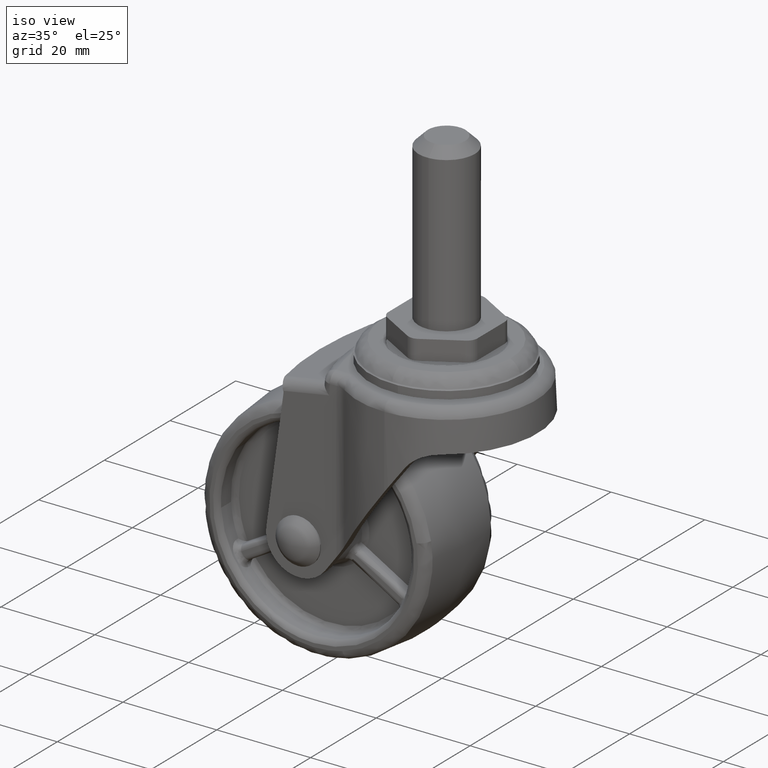
[diagram: clean part render]
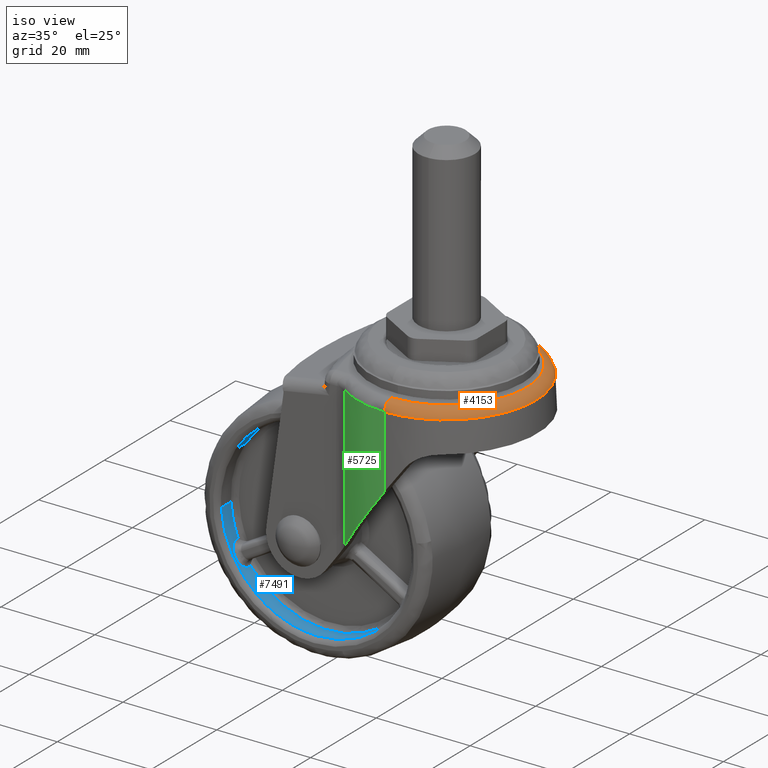
[diagram: same view with three faces highlighted in distinct colors, each labeled with its STEP entity id]
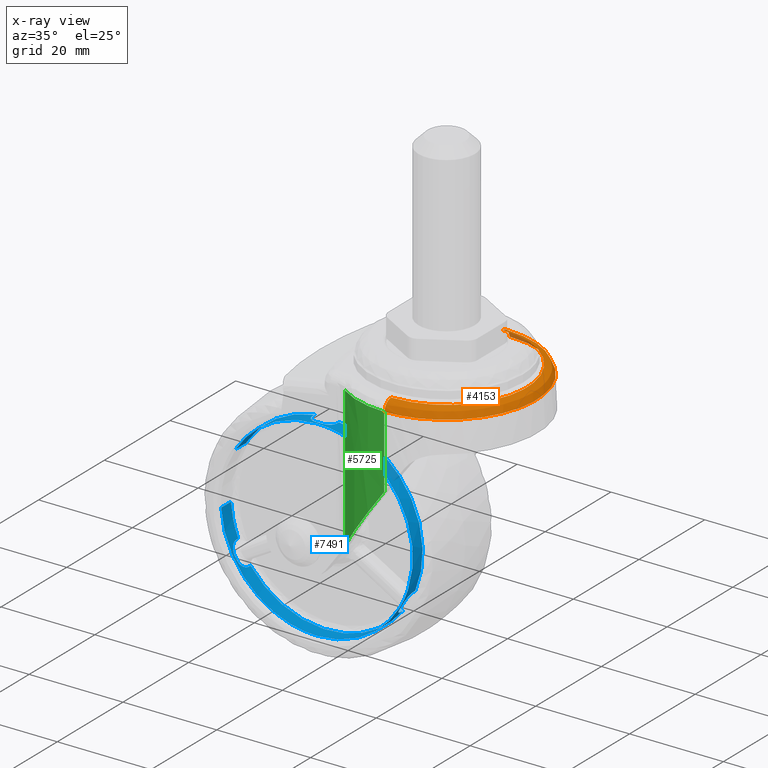
[diagram: x-ray of the same camera — body ghosted, the three highlighted faces saturated]
A machine part, iso view with three faces highlighted in distinct colors.
The next image is the same camera in x-ray (body ghosted, the three faces saturated) — at least one of them is partly hidden behind the body in this view.
Their STEP definitions:

[orange] entity #4153 — the highlighted face is a freeform B-spline surface patch.
#3962=CARTESIAN_POINT('',(21.076544331563849,17.0,33.959998999999897));
#3963=VERTEX_POINT('',#3962);
#3964=CARTESIAN_POINT('',(21.076544331563849,19.0,31.959998999999900));
#3965=VERTEX_POINT('',#3964);
#3966=CARTESIAN_POINT('',(21.076544331563849,17.0,33.959998999999897));
#3967=CARTESIAN_POINT('',(21.076544331563852,19.000000000000011,33.959998999999911));
#3968=CARTESIAN_POINT('',(21.076544331563849,19.0,31.959998999999900));
#3976=(BOUNDED_CURVE()B_SPLINE_CURVE(2,(#3966,#3967,#3968),.UNSPECIFIED.,.F.,.U.)CURVE()GEOMETRIC_REPRESENTATION_ITEM()QUASI_UNIFORM_CURVE()RATIONAL_B_SPLINE_CURVE((1.0,0.707106781186548,1.0))REPRESENTATION_ITEM(''));
#3977=EDGE_CURVE('',#3963,#3965,#3976,.T.);
#3993=CARTESIAN_POINT('',(21.076544331563841,-19.0,31.959998999999979));
#3994=CARTESIAN_POINT('',(22.321321544391651,-19.000000000000011,31.966507586487712));
#3995=CARTESIAN_POINT('',(23.566039739079219,-18.877524330151122,31.973015864304610));
#3996=CARTESIAN_POINT('',(26.007730376111809,-18.392316325171649,31.985782771051849));
#3997=CARTESIAN_POINT('',(27.204628326506018,-18.029595986933010,31.992041010432668));
#3998=CARTESIAN_POINT('',(29.504650614111650,-17.077826248495910,32.004067173623142));
#3999=CARTESIAN_POINT('',(30.607718082681309,-16.488800381048829,32.009834800065171));
#4000=CARTESIAN_POINT('',(32.677683454204697,-15.107044886447900,32.020658060999843));
#4001=CARTESIAN_POINT('',(33.644530176741164,-14.314349423548251,32.025713427861362));
#4002=CARTESIAN_POINT('',(35.404891023812141,-12.555708261540641,32.034917854668379));
#4003=CARTESIAN_POINT('',(36.198361622978652,-11.589806045281220,32.039066687038343));
#4004=CARTESIAN_POINT('',(37.581468265465872,-9.521862809463702,32.046298558776520));
#4005=CARTESIAN_POINT('',(38.171070111122077,-8.419872920329327,32.049381419334850));
#4006=CARTESIAN_POINT('',(39.123770536405459,-6.122097509544138,32.054362819247487));
#4007=CARTESIAN_POINT('',(39.486845560275647,-4.926368800969351,32.056261235402140));
#4008=CARTESIAN_POINT('',(39.972528025296029,-2.487063435643575,32.058800731045046));
#4009=CARTESIAN_POINT('',(40.095123457825942,-1.243547091331361,32.059441747737303));
#4010=CARTESIAN_POINT('',(40.095123457825942,1.243547091331429,32.059441747737303));
#4011=CARTESIAN_POINT('',(39.972528025296029,2.487063435643537,32.058800731045046));
#4012=CARTESIAN_POINT('',(39.486845560275647,4.926368800969313,32.056261235402140));
#4013=CARTESIAN_POINT('',(39.123770536405637,6.122097509543672,32.054362819247487));
#4014=CARTESIAN_POINT('',(38.171070111121942,8.419872920329688,32.049381419334850));
#4015=CARTESIAN_POINT('',(37.581468265464679,9.521862809465466,32.046298558776648));
#4016=CARTESIAN_POINT('',(36.198361622979853,11.589806045279420,32.039066687038208));
#4017=CARTESIAN_POINT('',(35.404891023810769,12.555708261542000,32.034917854668322));
#4018=CARTESIAN_POINT('',(33.644530176742677,14.314349423546730,32.025713427861433));
#4019=CARTESIAN_POINT('',(32.677683454208292,15.107044886445509,32.020658060999821));
#4020=CARTESIAN_POINT('',(30.607718082677760,16.488800381051199,32.009834800065178));
#4021=CARTESIAN_POINT('',(29.504650614107732,17.077826248497530,32.004067173623142));
#4022=CARTESIAN_POINT('',(27.204628326510061,18.029595986931351,31.992041010432679));
#4023=CARTESIAN_POINT('',(26.007730376112210,18.392316325171560,31.985782771051870));
#4024=CARTESIAN_POINT('',(23.566039739078889,18.877524330151189,31.973015864304589));
#4025=CARTESIAN_POINT('',(22.321321544392031,19.000000000000011,31.966507586487712));
#4026=CARTESIAN_POINT('',(21.076544331563770,19.0,31.959998999999979));
#4027=CARTESIAN_POINT('',(21.076544331563841,-18.999999999999925,33.959998999999911));
#4028=CARTESIAN_POINT('',(22.321326561709260,-18.993491387252934,33.959998999984442));
#4029=CARTESIAN_POINT('',(23.564747808145871,-18.864575325833243,33.959998999999897));
#4030=CARTESIAN_POINT('',(26.001534672508114,-18.367575831577728,33.959998999999897));
#4031=CARTESIAN_POINT('',(27.194823455868995,-17.999508636963661,33.959998999999890));
#4032=CARTESIAN_POINT('',(29.485908581077624,-17.038909927720471,33.959998999999897));
#4033=CARTESIAN_POINT('',(30.583651940276098,-16.446404693135626,33.959998999999904));
#4034=CARTESIAN_POINT('',(32.642085999809517,-15.060037110888562,33.959998999999904));
#4035=CARTESIAN_POINT('',(33.602729996908224,-14.266210021993924,33.959998999999911));
#4036=CARTESIAN_POINT('',(35.350744769400016,-12.507782408384259,33.959998999999911));
#4037=CARTESIAN_POINT('',(36.138076464941932,-11.543224784754957,33.959998999999911));
#4038=CARTESIAN_POINT('',(37.509877635008507,-9.480218361312200,33.959998999999897));
#4039=CARTESIAN_POINT('',(38.094316770002756,-8.381818609000995,33.959998999999904));
#4040=CARTESIAN_POINT('',(39.038420911785906,-6.092923421007789,33.959998999999904));
#4041=CARTESIAN_POINT('',(39.398065190254329,-4.902481540909773,33.959998999999904));
#4042=CARTESIAN_POINT('',(39.879114049548711,-2.474665106417900,33.959998999999904));
#4043=CARTESIAN_POINT('',(40.000508113015250,-1.237346862616169,33.959998999999904));
#4044=CARTESIAN_POINT('',(40.000508113015250,1.237346862616236,33.959998999999904));
#4045=CARTESIAN_POINT('',(39.879114049552577,2.474665106417863,33.959998999999904));
#4046=CARTESIAN_POINT('',(39.398065190250470,4.902481540909736,33.959998999999904));
#4047=CARTESIAN_POINT('',(39.038420911789785,6.092923421007734,33.959998999999897));
#4048=CARTESIAN_POINT('',(38.094316769998912,8.381818609000939,33.959998999999897));
#4049=CARTESIAN_POINT('',(37.509877635004656,9.480218361311218,33.959998999999911));
#4050=CARTESIAN_POINT('',(36.138076464945790,11.543224784755907,33.959998999999911));
#4051=CARTESIAN_POINT('',(35.350744769400102,12.507782408387081,33.959998999999897));
#4052=CARTESIAN_POINT('',(33.602729996908302,14.266210021990963,33.959998999999904));
#4053=CARTESIAN_POINT('',(32.642085999809531,15.060037110884695,33.959998999999897));
#4054=CARTESIAN_POINT('',(30.583651940276102,16.446404693139478,33.959998999999897));
#4055=CARTESIAN_POINT('',(29.485908581075751,17.038909927724319,33.959998999999911));
#4056=CARTESIAN_POINT('',(27.194823455870988,17.999508636959771,33.959998999999911));
#4057=CARTESIAN_POINT('',(26.001534672508150,18.367575831575774,33.959998999999890));
#4058=CARTESIAN_POINT('',(23.564747808145903,18.864575325835162,33.959998999999897));
#4059=CARTESIAN_POINT('',(22.321326561709363,18.993491387252920,33.959998999984435));
#4060=CARTESIAN_POINT('',(21.076544331563781,18.999999999999925,33.959998999999911));
#4061=CARTESIAN_POINT('',(21.076544331563849,-17.0,33.959998999999897));
#4062=CARTESIAN_POINT('',(22.190582273708930,-17.000000000001929,33.959998999999897));
#4063=CARTESIAN_POINT('',(23.304567396401211,-16.890416505923909,33.959998999999897));
#4064=CARTESIAN_POINT('',(25.489806638092968,-16.456283027785940,33.959998999999897));
#4065=CARTESIAN_POINT('',(26.560994089044829,-16.131743777780940,33.959998999999897));
#4066=CARTESIAN_POINT('',(28.619444444469949,-15.280160327602820,33.959998999999897));
#4067=CARTESIAN_POINT('',(29.606656453225849,-14.753137183044011,33.959998999999897));
#4068=CARTESIAN_POINT('',(31.459212829612611,-13.516829635242530,33.959998999999897));
#4069=CARTESIAN_POINT('',(32.324511392314157,-12.807575800018011,33.959998999999897));
#4070=CARTESIAN_POINT('',(33.899981087041937,-11.234054760324680,33.959998999999897));
#4071=CARTESIAN_POINT('',(34.610113265186591,-10.369826461566671,33.959998999999897));
#4072=CARTESIAN_POINT('',(35.847951861428420,-8.519561461099839,33.959998999999897));
#4073=CARTESIAN_POINT('',(36.375627673655707,-7.533570507662994,33.959998999999897));
#4074=CARTESIAN_POINT('',(37.228265728339991,-5.477666192750105,33.959998999999897));
#4075=CARTESIAN_POINT('',(37.553206889111017,-4.407803664025647,33.959998999999897));
#4076=CARTESIAN_POINT('',(37.987877999965193,-2.225267284522759,33.959998999999897));
#4077=CARTESIAN_POINT('',(38.097597202698751,-1.112647397507008,33.959998999999897));
#4078=CARTESIAN_POINT('',(38.097597202698751,1.112647397507068,33.959998999999897));
#4079=CARTESIAN_POINT('',(37.987877999965193,2.225267284522726,33.959998999999897));
#4080=CARTESIAN_POINT('',(37.553206889111017,4.407803664025614,33.959998999999897));
#4081=CARTESIAN_POINT('',(37.228265728340013,5.477666192749575,33.959998999999897));
#4082=CARTESIAN_POINT('',(36.375627673655728,7.533570507663431,33.959998999999897));
#4083=CARTESIAN_POINT('',(35.847951861428427,8.519561461099823,33.959998999999897));
#4084=CARTESIAN_POINT('',(34.610113265186598,10.369826461566650,33.959998999999897));
#4085=CARTESIAN_POINT('',(33.899981087042022,11.234054760326551,33.959998999999897));
#4086=CARTESIAN_POINT('',(32.324511392314228,12.807575800016011,33.959998999999897));
#4087=CARTESIAN_POINT('',(31.459212829612628,13.516829635241560,33.959998999999897));
#4088=CARTESIAN_POINT('',(29.606656453225870,14.753137183044970,33.959998999999897));
#4089=CARTESIAN_POINT('',(28.619444444466140,15.280160327602809,33.959998999999897));
#4090=CARTESIAN_POINT('',(26.560994089048741,16.131743777780930,33.959998999999897));
#4091=CARTESIAN_POINT('',(25.489806638093000,16.456283027783989,33.959998999999897));
#4092=CARTESIAN_POINT('',(23.304567396401239,16.890416505925842,33.959998999999897));
#4093=CARTESIAN_POINT('',(22.190582273709030,17.000000000001929,33.959998999999897));
#4094=CARTESIAN_POINT('',(21.076544331563792,17.0,33.959998999999897));
#4102=(BOUNDED_SURFACE()B_SPLINE_SURFACE(3,2,((#3993,#4027,#4061),(#3994,#4028,#4062),(#3995,#4029,#4063),(#3996,#4030,#4064),(#3997,#4031,#4065),(#3998,#4032,#4066),(#3999,#4033,#4067),(#4000,#4034,#4068),(#4001,#4035,#4069),(#4002,#4036,#4070),(#4003,#4037,#4071),(#4004,#4038,#4072),(#4005,#4039,#4073),(#4006,#4040,#4074),(#4007,#4041,#4075),(#4008,#4042,#4076),(#4009,#4043,#4077),(#4010,#4044,#4078),(#4011,#4045,#4079),(#4012,#4046,#4080),(#4013,#4047,#4081),(#4014,#4048,#4082),(#4015,#4049,#4083),(#4016,#4050,#4084),(#4017,#4051,#4085),(#4018,#4052,#4086),(#4019,#4053,#4087),(#4020,#4054,#4088),(#4021,#4055,#4089),(#4022,#4056,#4090),(#4023,#4057,#4091),(#4024,#4058,#4092),(#4025,#4059,#4093),(#4026,#4060,#4094)),.UNSPECIFIED.,.F.,.F.,.U.)B_SPLINE_SURFACE_WITH_KNOTS((4,2,2,2,2,2,2,2,2,2,2,2,2,2,2,2,4),(3,3),(0.0,3.734382685461011,7.468765370922022,11.203148056383020,14.937530741844030,18.671913427305039,22.406296112766029,26.140678798227039,29.875061483688061,33.609444169149057,37.343826854610079,41.078209540071072,44.812592225532093,48.546974910993093,52.281357596454093,56.015740281915100,59.750122967376122),(0.0,3.313708498984673),.UNSPECIFIED.)GEOMETRIC_REPRESENTATION_ITEM()RATIONAL_B_SPLINE_SURFACE(((1.0,0.707106781186562,1.0),(1.0,0.708257360592211,1.0),(1.0,0.709405016356692,1.0),(1.0,0.711651040833994,1.0),(1.0,0.712749332809969,1.0),(1.0,0.714855336567382,1.0),(1.0,0.715863004069007,1.0),(1.0,0.717750413325171,1.0),(1.0,0.718630117912655,1.0),(1.0,0.720229375319739,1.0),(1.0,0.720948898419149,1.0),(1.0,0.722201690711292,1.0),(1.0,0.722734937706494,1.0),(1.0,0.723595978540296,1.0),(1.0,0.723923757650568,1.0),(1.0,0.724362119938419,1.0),(1.0,0.724472695782494,1.0),(1.0,0.724472695782494,1.0),(1.0,0.724362119938419,1.0),(1.0,0.723923757650568,1.0),(1.0,0.723595978540297,1.0),(1.0,0.722734937706495,1.0),(1.0,0.722201690711354,1.0),(1.0,0.720948898419087,1.0),(1.0,0.720229375319553,1.0),(1.0,0.718630117912840,1.0),(1.0,0.717750413325357,1.0),(1.0,0.715863004068821,1.0),(1.0,0.714855336567010,1.0),(1.0,0.712749332810340,1.0),(1.0,0.711651040833624,1.0),(1.0,0.709405016357064,1.0),(1.0,0.708257360591932,1.0),(1.0,0.707106781186562,1.0)))REPRESENTATION_ITEM('')SURFACE());
#4103=CARTESIAN_POINT('',(21.076544331563849,-17.0,33.959998999999897));
#4104=VERTEX_POINT('',#4103);
#4105=CARTESIAN_POINT('',(21.076544331563849,-19.0,31.959998999999900));
#4106=VERTEX_POINT('',#4105);
#4107=CARTESIAN_POINT('',(21.076544331563849,-17.0,33.959998999999897));
#4108=CARTESIAN_POINT('',(21.076544331563852,-19.000000000000011,33.959998999999911));
#4109=CARTESIAN_POINT('',(21.076544331563849,-19.0,31.959998999999900));
#4117=(BOUNDED_CURVE()B_SPLINE_CURVE(2,(#4107,#4108,#4109),.UNSPECIFIED.,.F.,.U.)CURVE()GEOMETRIC_REPRESENTATION_ITEM()QUASI_UNIFORM_CURVE()RATIONAL_B_SPLINE_CURVE((1.0,0.707106781186548,1.0))REPRESENTATION_ITEM(''));
#4118=EDGE_CURVE('',#4104,#4106,#4117,.T.);
#4119=ORIENTED_EDGE('',*,*,#4118,.T.);
#4120=CARTESIAN_POINT('',(21.076544331563849,19.0,31.959998999999900));
#4121=CARTESIAN_POINT('',(40.095123457825949,18.999999999999996,32.059441747737210));
#4122=CARTESIAN_POINT('',(40.095123457825942,4.653504E-015,32.059441747737210));
#4123=CARTESIAN_POINT('',(40.095123457825949,-18.999999999999996,32.059441747737210));
#4124=CARTESIAN_POINT('',(21.076544331563859,-19.0,31.959998999999900));
#4132=(BOUNDED_CURVE()B_SPLINE_CURVE(2,(#4120,#4121,#4122,#4123,#4124),.UNSPECIFIED.,.F.,.U.)B_SPLINE_CURVE_WITH_KNOTS((3,2,3),(0.0,0.500000000000000,1.0),.UNSPECIFIED.)CURVE()GEOMETRIC_REPRESENTATION_ITEM()RATIONAL_B_SPLINE_CURVE((1.0,0.707106781186547,1.0,0.707106781186547,1.0))REPRESENTATION_ITEM(''));
#4133=EDGE_CURVE('',#3965,#4106,#4132,.T.);
#4134=ORIENTED_EDGE('',*,*,#4133,.F.);
#4135=ORIENTED_EDGE('',*,*,#3977,.F.);
#4136=CARTESIAN_POINT('',(21.076544331563849,-17.0,33.959998999999897));
#4137=CARTESIAN_POINT('',(38.097597202698758,-17.0,33.959998999999904));
#4138=CARTESIAN_POINT('',(38.097597202698751,-4.163662E-015,33.959998999999897));
#4139=CARTESIAN_POINT('',(38.097597202698758,17.0,33.959998999999904));
#4140=CARTESIAN_POINT('',(21.076544331563859,17.0,33.959998999999897));
#4148=(BOUNDED_CURVE()B_SPLINE_CURVE(2,(#4136,#4137,#4138,#4139,#4140),.UNSPECIFIED.,.F.,.U.)B_SPLINE_CURVE_WITH_KNOTS((3,2,3),(0.0,0.500000000000000,1.0),.UNSPECIFIED.)CURVE()GEOMETRIC_REPRESENTATION_ITEM()RATIONAL_B_SPLINE_CURVE((1.0,0.707106781186548,1.0,0.707106781186548,1.0))REPRESENTATION_ITEM(''));
#4149=EDGE_CURVE('',#4104,#3963,#4148,.T.);
#4150=ORIENTED_EDGE('',*,*,#4149,.F.);
#4151=EDGE_LOOP('',(#4119,#4134,#4135,#4150));
#4152=FACE_OUTER_BOUND('',#4151,.T.);
#4153=ADVANCED_FACE('',(#4152),#4102,.T.);

[blue] entity #7491 — the highlighted face is a freeform B-spline surface patch.
#7029=CARTESIAN_POINT('',(-20.413715871584664,-6.425000000000002,-1.217613080671697));
#7030=CARTESIAN_POINT('',(-19.786987739992192,-6.425000000000000,-11.724932860778045));
#7031=CARTESIAN_POINT('',(-10.871660238532680,-6.424999999999999,-17.320778878500761));
#7032=CARTESIAN_POINT('',(6.449118639968082,-6.425000000000000,-28.192439117033445));
#7033=CARTESIAN_POINT('',(17.320778878500761,-6.424999999999999,-10.871660238532680));
#7034=CARTESIAN_POINT('',(28.192439117033445,-6.425000000000000,6.449118639968084));
#7035=CARTESIAN_POINT('',(10.871660238532680,-6.424999999999999,17.320778878500761));
#7036=CARTESIAN_POINT('',(-6.449118639968082,-6.425000000000000,28.192439117033455));
#7037=CARTESIAN_POINT('',(-17.320778878500761,-6.424999999999999,10.871660238532680));
#7038=CARTESIAN_POINT('',(-20.413715871584664,-9.576875000000003,-1.217613080671697));
#7039=CARTESIAN_POINT('',(-19.786987739992192,-9.576875000000001,-11.724932860778045));
#7040=CARTESIAN_POINT('',(-10.871660238532680,-9.576875000000001,-17.320778878500761));
#7041=CARTESIAN_POINT('',(6.449118639968082,-9.576875000000001,-28.192439117033445));
#7042=CARTESIAN_POINT('',(17.320778878500761,-9.576875000000001,-10.871660238532680));
#7043=CARTESIAN_POINT('',(28.192439117033445,-9.576875000000001,6.449118639968084));
#7044=CARTESIAN_POINT('',(10.871660238532680,-9.576875000000001,17.320778878500761));
#7045=CARTESIAN_POINT('',(-6.449118639968082,-9.576875000000001,28.192439117033455));
#7046=CARTESIAN_POINT('',(-17.320778878500761,-9.576875000000001,10.871660238532680));
#7054=(BOUNDED_SURFACE()B_SPLINE_SURFACE(2,1,((#7029,#7038),(#7030,#7039),(#7031,#7040),(#7032,#7041),(#7033,#7042),(#7034,#7043),(#7035,#7044),(#7036,#7045),(#7037,#7046)),.UNSPECIFIED.,.F.,.F.,.U.)B_SPLINE_SURFACE_WITH_KNOTS((3,2,2,2,3),(2,2),(0.0,20.329598658933900,54.212263090490403,88.094927522046888,121.977591953603390),(0.0,3.151875000000003),.UNSPECIFIED.)GEOMETRIC_REPRESENTATION_ITEM()RATIONAL_B_SPLINE_SURFACE(((0.859411254969543,0.859411254969543),(0.824264068711928,0.824264068711928),(1.0,1.0),(0.707106781186548,0.707106781186548),(1.0,1.0),(0.707106781186548,0.707106781186548),(1.0,1.0),(0.707106781186548,0.707106781186548),(1.0,1.0)))REPRESENTATION_ITEM('')SURFACE());
#7055=CARTESIAN_POINT('',(-20.413715871580042,-9.499999999998787,-1.217613080749249));
#7056=VERTEX_POINT('',#7055);
#7057=CARTESIAN_POINT('',(-8.707185235172339,-9.499999999607741,-18.503710508446890));
#7058=VERTEX_POINT('',#7057);
#7059=CARTESIAN_POINT('',(-20.413715871580038,-9.499999999998787,-1.217613080749248));
#7060=CARTESIAN_POINT('',(-19.690943651472583,-9.499999999974646,-13.335146124265028));
#7061=CARTESIAN_POINT('',(-8.707185235172339,-9.499999999607741,-18.503710508446886));
#7069=(BOUNDED_CURVE()B_SPLINE_CURVE(2,(#7059,#7060,#7061),.UNSPECIFIED.,.F.,.U.)B_SPLINE_CURVE_WITH_KNOTS((3,3),(0.760406366264307,0.927668464636399),.UNSPECIFIED.)CURVE()GEOMETRIC_REPRESENTATION_ITEM()RATIONAL_B_SPLINE_CURVE((0.976631347168411,0.796985440070392,0.879552628112347))REPRESENTATION_ITEM(''));
#7070=EDGE_CURVE('',#7056,#7058,#7069,.T.);
#7071=ORIENTED_EDGE('',*,*,#7070,.T.);
#7072=CARTESIAN_POINT('',(0.0,-9.500000000000000,-20.449997000000049));
#7073=VERTEX_POINT('',#7072);
#7074=CARTESIAN_POINT('',(-8.707185235172339,-9.499999999607741,-18.503710508446886));
#7075=CARTESIAN_POINT('',(-4.571115904672435,-9.499999999999998,-20.449997000000053));
#7076=CARTESIAN_POINT('',(0.0,-9.500000000000000,-20.449997000000049));
#7084=(BOUNDED_CURVE()B_SPLINE_CURVE(2,(#7074,#7075,#7076),.UNSPECIFIED.,.F.,.U.)B_SPLINE_CURVE_WITH_KNOTS((3,3),(0.927668464636400,1.0),.UNSPECIFIED.)CURVE()GEOMETRIC_REPRESENTATION_ITEM()RATIONAL_B_SPLINE_CURVE((0.879552628112348,0.915258335142545,1.0))REPRESENTATION_ITEM(''));
#7085=EDGE_CURVE('',#7058,#7073,#7084,.T.);
#7086=ORIENTED_EDGE('',*,*,#7085,.T.);
#7087=CARTESIAN_POINT('',(19.385319441532939,-9.499999999614193,-6.512431761618381));
#7088=VERTEX_POINT('',#7087);
#7089=CARTESIAN_POINT('',(0.0,-9.500000000000000,-20.449997000000049));
#7090=CARTESIAN_POINT('',(14.703042071170243,-9.499999999999998,-20.449997000000057));
#7091=CARTESIAN_POINT('',(19.385319441532936,-9.499999999614193,-6.512431761618381));
#7099=(BOUNDED_CURVE()B_SPLINE_CURVE(2,(#7089,#7090,#7091),.UNSPECIFIED.,.F.,.U.)B_SPLINE_CURVE_WITH_KNOTS((3,3),(0.0,0.195865557710577),.UNSPECIFIED.)CURVE()GEOMETRIC_REPRESENTATION_ITEM()RATIONAL_B_SPLINE_CURVE((1.0,0.770529225389828,0.900621820758052))REPRESENTATION_ITEM(''));
#7100=EDGE_CURVE('',#7073,#7088,#7099,.T.);
#7101=ORIENTED_EDGE('',*,*,#7100,.T.);
#7102=CARTESIAN_POINT('',(0.0,-9.500000000000000,20.449997000000049));
#7103=VERTEX_POINT('',#7102);
#7104=CARTESIAN_POINT('',(19.385319441532936,-9.499999999614193,-6.512431761618381));
#7105=CARTESIAN_POINT('',(20.449997000000057,-9.500000000000000,-3.343244685495479));
#7106=CARTESIAN_POINT('',(20.449997000000049,-9.500000000000000,1.316451E-015));
#7107=CARTESIAN_POINT('',(20.449997000000049,-9.500000000000000,20.449997000000049));
#7108=CARTESIAN_POINT('',(0.0,-9.500000000000000,20.449997000000049));
#7116=(BOUNDED_CURVE()B_SPLINE_CURVE(2,(#7104,#7105,#7106,#7107,#7108),.UNSPECIFIED.,.F.,.U.)B_SPLINE_CURVE_WITH_KNOTS((3,2,3),(0.195865557710577,0.250000000000000,0.500000000000000),.UNSPECIFIED.)CURVE()GEOMETRIC_REPRESENTATION_ITEM()RATIONAL_B_SPLINE_CURVE((0.900621820758052,0.936577555796720,1.0,0.707106781186548,1.0))REPRESENTATION_ITEM(''));
#7117=EDGE_CURVE('',#7088,#7103,#7116,.T.);
#7118=ORIENTED_EDGE('',*,*,#7117,.T.);
#7119=CARTESIAN_POINT('',(-17.320785155211311,-9.500000000000444,10.871650238435890));
#7120=VERTEX_POINT('',#7119);
#7121=CARTESIAN_POINT('',(0.0,-9.500000000000000,20.449997000000049));
#7122=CARTESIAN_POINT('',(-11.308792343050570,-9.500000000000000,20.449997000000049));
#7123=CARTESIAN_POINT('',(-17.320785155211315,-9.500000000000444,10.871650238435887));
#7131=(BOUNDED_CURVE()B_SPLINE_CURVE(2,(#7121,#7122,#7123),.UNSPECIFIED.,.F.,.U.)B_SPLINE_CURVE_WITH_KNOTS((3,3),(0.500000000000000,0.659076221983552),.UNSPECIFIED.)CURVE()GEOMETRIC_REPRESENTATION_ITEM()RATIONAL_B_SPLINE_CURVE((1.0,0.813630613226217,0.864436729983352))REPRESENTATION_ITEM(''));
#7132=EDGE_CURVE('',#7103,#7120,#7131,.T.);
#7133=ORIENTED_EDGE('',*,*,#7132,.T.);
#7134=CARTESIAN_POINT('',(-17.320785829824231,-6.500000000000000,10.871649163636580));
#7135=VERTEX_POINT('',#7134);
#7136=CARTESIAN_POINT('',(-17.320785829824231,-6.500000000000000,10.871649163636580));
#7137=CARTESIAN_POINT('',(-17.320785155211311,-9.500000000000444,10.871650238435890));
#7138=QUASI_UNIFORM_CURVE('',1,(#7136,#7137),.UNSPECIFIED.,.F.,.U.);
#7139=EDGE_CURVE('',#7135,#7120,#7138,.T.);
#7140=ORIENTED_EDGE('',*,*,#7139,.F.);
#7141=CARTESIAN_POINT('',(-2.628529900570825,-6.500000000000000,20.280365082064350));
#7142=VERTEX_POINT('',#7141);
#7143=CARTESIAN_POINT('',(-2.628529900570821,-6.500000000000000,20.280365082064382));
#7144=CARTESIAN_POINT('',(-12.193378958944455,-6.499999999999999,19.040668871338049));
#7145=CARTESIAN_POINT('',(-17.320785829824235,-6.500000000000000,10.871649163636578));
#7153=(BOUNDED_CURVE()B_SPLINE_CURVE(2,(#7143,#7144,#7145),.UNSPECIFIED.,.F.,.U.)B_SPLINE_CURVE_WITH_KNOTS((3,3),(0.0,0.479263945960875),.UNSPECIFIED.)CURVE()GEOMETRIC_REPRESENTATION_ITEM()RATIONAL_B_SPLINE_CURVE((1.0,0.900723483499090,0.991765587156084))REPRESENTATION_ITEM(''));
#7154=EDGE_CURVE('',#7142,#7135,#7153,.T.);
#7155=ORIENTED_EDGE('',*,*,#7154,.F.);
#7156=CARTESIAN_POINT('',(-2.628529900570825,-7.0,20.280365082064350));
#7157=VERTEX_POINT('',#7156);
#7158=CARTESIAN_POINT('',(-2.628529900570825,-6.500000000000000,20.280365082064350));
#7159=CARTESIAN_POINT('',(-2.628529900570825,-7.0,20.280365082064350));
#7160=QUASI_UNIFORM_CURVE('',1,(#7158,#7159),.UNSPECIFIED.,.F.,.U.);
#7161=EDGE_CURVE('',#7142,#7157,#7160,.T.);
#7162=ORIENTED_EDGE('',*,*,#7161,.T.);
#7163=CARTESIAN_POINT('',(-0.525702079129460,-9.0,20.443238848675851));
#7164=VERTEX_POINT('',#7163);
#7165=CARTESIAN_POINT('',(-2.628529900570825,-7.0,20.280365082064350));
#7166=CARTESIAN_POINT('',(-2.628529900570825,-7.135772273803079,20.280365082064350));
#7167=CARTESIAN_POINT('',(-2.614142473759461,-7.269833926505912,20.282245096797709));
#7168=CARTESIAN_POINT('',(-2.571281410320470,-7.468398354877368,20.287708018499050));
#7169=CARTESIAN_POINT('',(-2.553468430613493,-7.533779862668300,20.289963590278610));
#7170=CARTESIAN_POINT('',(-2.511545756285621,-7.661157070744631,20.295195525913400));
#7171=CARTESIAN_POINT('',(-2.463209082888572,-7.785718104458332,20.301163175804088));
#7172=CARTESIAN_POINT('',(-2.402341159314521,-7.904784348079343,20.308428735663121));
#7173=CARTESIAN_POINT('',(-2.335166296902153,-8.021089514507276,20.316262429961281));
#7174=CARTESIAN_POINT('',(-2.298189651127494,-8.078151629617056,20.320488993266970));
#7175=CARTESIAN_POINT('',(-2.179998487590154,-8.241739546930939,20.333624101133669));
#7176=CARTESIAN_POINT('',(-2.091347663396254,-8.341485520486499,20.343017260596358));
#7177=CARTESIAN_POINT('',(-1.944249946348819,-8.477819385973005,20.357423626275970));
#7178=CARTESIAN_POINT('',(-1.892845825138435,-8.521032850490103,20.362279658016959));
#7179=CARTESIAN_POINT('',(-1.785193275474266,-8.602911985267831,20.371999979340181));
#7180=CARTESIAN_POINT('',(-1.729767313923822,-8.640949329060019,20.376789244373221));
#7181=CARTESIAN_POINT('',(-1.559115805731945,-8.746601298266970,20.390796097356439));
#7182=CARTESIAN_POINT('',(-1.439459734979570,-8.805904085850463,20.399660601735150));
#7183=CARTESIAN_POINT('',(-1.251185014469209,-8.878306588755123,20.411782584655100));
#7184=CARTESIAN_POINT('',(-1.186705080338397,-8.899706468041428,20.415638925882039));
#7185=CARTESIAN_POINT('',(-1.057217716412925,-8.936121941703588,20.422753790803860));
#7186=CARTESIAN_POINT('',(-0.991964929155332,-8.951255679244985,20.426030327009460));
#7187=CARTESIAN_POINT('',(-0.794712839192025,-8.987654191849369,20.434973378145791));
#7188=CARTESIAN_POINT('',(-0.661233361591041,-8.999999999999996,20.439753633954989));
#7189=CARTESIAN_POINT('',(-0.525702079129459,-9.0,20.443238848675851));
#7190=B_SPLINE_CURVE_WITH_KNOTS('',3,(#7165,#7166,#7167,#7168,#7169,#7170,#7171,#7172,#7173,#7174,#7175,#7176,#7177,#7178,#7179,#7180,#7181,#7182,#7183,#7184,#7185,#7186,#7187,#7188,#7189),.UNSPECIFIED.,.F.,.U.,(4,2,2,1,2,2,2,2,2,2,2,2,4),(0.0,0.124999999999999,0.187499999999998,0.249999999999998,0.312499999999998,0.374999999999998,0.499999999999999,0.562499999999999,0.624999999999999,0.749999999999999,0.812499999999999,0.875000000000000,1.0),.UNSPECIFIED.);
#7191=EDGE_CURVE('',#7157,#7164,#7190,.T.);
#7192=ORIENTED_EDGE('',*,*,#7191,.T.);
#7193=CARTESIAN_POINT('',(0.525710776908402,-9.0,20.443238625008799));
#7194=VERTEX_POINT('',#7193);
#7195=CARTESIAN_POINT('',(-0.525702079129460,-9.0,20.443238848675861));
#7196=CARTESIAN_POINT('',(0.000004351765341,-9.0,20.456757497348850));
#7197=CARTESIAN_POINT('',(0.525710776908394,-9.0,20.443238625008838));
#7205=(BOUNDED_CURVE()B_SPLINE_CURVE(2,(#7195,#7196,#7197),.UNSPECIFIED.,.F.,.U.)CURVE()GEOMETRIC_REPRESENTATION_ITEM()QUASI_UNIFORM_CURVE()RATIONAL_B_SPLINE_CURVE((1.0,0.999669522535517,1.0))REPRESENTATION_ITEM(''));
#7206=EDGE_CURVE('',#7164,#7194,#7205,.T.);
#7207=ORIENTED_EDGE('',*,*,#7206,.T.);
#7208=CARTESIAN_POINT('',(2.628538525473745,-7.0,20.280363964192301));
#7209=VERTEX_POINT('',#7208);
#7210=CARTESIAN_POINT('',(0.525710776908402,-9.0,20.443238625008799));
#7211=CARTESIAN_POINT('',(0.661254908065164,-9.0,20.439753022174390));
#7212=CARTESIAN_POINT('',(0.795422175586470,-8.987650936722993,20.434954201385612));
#7213=CARTESIAN_POINT('',(0.994622745174763,-8.950702391184127,20.425903186452359));
#7214=CARTESIAN_POINT('',(1.060677186110286,-8.935258815821214,20.422574003503751));
#7215=CARTESIAN_POINT('',(1.189906310418505,-8.898695642886743,20.415452186864449));
#7216=CARTESIAN_POINT('',(1.316822315980693,-8.856368254672027,20.407842934970411));
#7217=CARTESIAN_POINT('',(1.439155231393354,-8.802601107747503,20.399383052102671));
#7218=CARTESIAN_POINT('',(1.559154155953054,-8.742996277316088,20.390562400395790));
#7219=CARTESIAN_POINT('',(1.618201513740099,-8.710139934761884,20.385953747516272));
#7220=CARTESIAN_POINT('',(1.790193930113984,-8.603308379933022,20.371814330891699));
#7221=CARTESIAN_POINT('',(1.896438171840452,-8.522264156798231,20.362111202236520));
#7222=CARTESIAN_POINT('',(2.043262476737882,-8.385997329326818,20.347724049979838));
#7223=CARTESIAN_POINT('',(2.090099028852236,-8.338107925750713,20.342956481783109));
#7224=CARTESIAN_POINT('',(2.157065453401141,-8.262410870426471,20.335927559304601));
#7225=CARTESIAN_POINT('',(2.178892980550804,-8.236461089285106,20.333599071134831));
#7226=CARTESIAN_POINT('',(2.221003115428253,-8.183758561548920,20.329042549210410));
#7227=CARTESIAN_POINT('',(2.241318505158118,-8.156976078606364,20.326811283207871));
#7228=CARTESIAN_POINT('',(2.339239224645547,-8.020930052995787,20.315918628133328));
#7229=CARTESIAN_POINT('',(2.405985745504661,-7.905329540863750,20.308044191092261));
#7230=CARTESIAN_POINT('',(2.474506111170620,-7.752095643592705,20.299738603408858));
#7231=CARTESIAN_POINT('',(2.487457549223576,-7.721008132068023,20.298154665114708));
#7232=CARTESIAN_POINT('',(2.511814767759084,-7.657927349961723,20.295154949903068));
#7233=CARTESIAN_POINT('',(2.523211577841125,-7.625937092870729,20.293740221140940));
#7234=CARTESIAN_POINT('',(2.554649754828728,-7.529783301530484,20.289814884540931));
#7235=CARTESIAN_POINT('',(2.572103699571890,-7.465047355267537,20.287603591633520));
#7236=CARTESIAN_POINT('',(2.614150818102097,-7.268973568362343,20.282243251934329));
#7237=CARTESIAN_POINT('',(2.628538525473744,-7.135789323917391,20.280363964192290));
#7238=CARTESIAN_POINT('',(2.628538525473745,-7.000000000000001,20.280363964192301));
#7239=B_SPLINE_CURVE_WITH_KNOTS('',3,(#7210,#7211,#7212,#7213,#7214,#7215,#7216,#7217,#7218,#7219,#7220,#7221,#7222,#7223,#7224,#7225,#7226,#7227,#7228,#7229,#7230,#7231,#7232,#7233,#7234,#7235,#7236,#7237,#7238),.UNSPECIFIED.,.F.,.U.,(4,2,2,1,2,2,2,2,2,2,2,2,2,2,4),(0.0,0.124999999999998,0.187499999999997,0.249999999999995,0.312499999999994,0.374999999999993,0.499999999999992,0.562499999999992,0.593749999999992,0.624999999999993,0.749999999999994,0.781249999999995,0.812499999999996,0.874999999999998,1.0),.UNSPECIFIED.);
#7240=EDGE_CURVE('',#7194,#7209,#7239,.T.);
#7241=ORIENTED_EDGE('',*,*,#7240,.T.);
#7242=CARTESIAN_POINT('',(2.628538525473750,-6.500000000000000,20.280363964192301));
#7243=VERTEX_POINT('',#7242);
#7244=CARTESIAN_POINT('',(2.628538525473745,-7.0,20.280363964192301));
#7245=CARTESIAN_POINT('',(2.628538525473750,-6.500000000000000,20.280363964192301));
#7246=QUASI_UNIFORM_CURVE('',1,(#7244,#7245),.UNSPECIFIED.,.F.,.U.);
#7247=EDGE_CURVE('',#7209,#7243,#7246,.T.);
#7248=ORIENTED_EDGE('',*,*,#7247,.T.);
#7249=CARTESIAN_POINT('',(18.877576309376050,-6.500000000000000,-7.863808872530860));
#7250=VERTEX_POINT('',#7249);
#7251=CARTESIAN_POINT('',(18.877576309376050,-6.500000000000000,-7.863808872530860));
#7252=CARTESIAN_POINT('',(22.765399906488632,-6.500000000000000,1.469160407566264));
#7253=CARTESIAN_POINT('',(17.710219083576401,-6.500000000000000,10.224994734068931));
#7254=CARTESIAN_POINT('',(12.655038260664169,-6.500000000000000,18.980829060571590));
#7255=CARTESIAN_POINT('',(2.628538525473754,-6.500000000000000,20.280363964192340));
#7263=(BOUNDED_CURVE()B_SPLINE_CURVE(2,(#7251,#7252,#7253,#7254,#7255),.UNSPECIFIED.,.F.,.U.)B_SPLINE_CURVE_WITH_KNOTS((3,2,3),(0.0,0.500000000000000,1.0),.UNSPECIFIED.)CURVE()GEOMETRIC_REPRESENTATION_ITEM()RATIONAL_B_SPLINE_CURVE((1.0,0.896428140132813,1.0,0.896428140132813,1.0))REPRESENTATION_ITEM(''));
#7264=EDGE_CURVE('',#7250,#7243,#7263,.T.);
#7265=ORIENTED_EDGE('',*,*,#7264,.F.);
#7266=CARTESIAN_POINT('',(18.877576309376050,-7.0,-7.863808872530860));
#7267=VERTEX_POINT('',#7266);
#7268=CARTESIAN_POINT('',(18.877576309376050,-6.500000000000000,-7.863808872530860));
#7269=CARTESIAN_POINT('',(18.877576309376050,-7.0,-7.863808872530860));
#7270=QUASI_UNIFORM_CURVE('',1,(#7268,#7269),.UNSPECIFIED.,.F.,.U.);
#7271=EDGE_CURVE('',#7250,#7267,#7270,.T.);
#7272=ORIENTED_EDGE('',*,*,#7271,.T.);
#7273=CARTESIAN_POINT('',(17.967215218150951,-9.0,-9.766348068989512));
#7274=VERTEX_POINT('',#7273);
#7275=CARTESIAN_POINT('',(18.877576309376050,-7.0,-7.863808872530860));
#7276=CARTESIAN_POINT('',(18.877576309376050,-7.135772273803078,-7.863808872530860));
#7277=CARTESIAN_POINT('',(18.872010736488921,-7.269833926505912,-7.877208757011259));
#7278=CARTESIAN_POINT('',(18.855311233741670,-7.468398354877365,-7.917058987633311));
#7279=CARTESIAN_POINT('',(18.848358126349339,-7.533779862668301,-7.933613266466431));
#7280=CARTESIAN_POINT('',(18.831927778356079,-7.661157070744632,-7.972535335246344));
#7281=CARTESIAN_POINT('',(18.812927578063800,-7.785718104458329,-8.017379947287962));
#7282=CARTESIAN_POINT('',(18.788785775687408,-7.904784348079351,-8.073725895308222));
#7283=CARTESIAN_POINT('',(18.761982522748919,-8.021089514507281,-8.135817879802138));
#7284=CARTESIAN_POINT('',(18.747154511055019,-8.078151629617052,-8.169953876042573));
#7285=CARTESIAN_POINT('',(18.699434266380361,-8.241739546930942,-8.278877980102099));
#7286=CARTESIAN_POINT('',(18.663243568999899,-8.341485520486501,-8.360348425651793));
#7287=CARTESIAN_POINT('',(18.602170989130940,-8.477819385973012,-8.494941968293382));
#7288=CARTESIAN_POINT('',(18.580674375375018,-8.521032850490110,-8.541887258991272));
#7289=CARTESIAN_POINT('',(18.535266145741790,-8.602911985267836,-8.639977262444223));
#7290=CARTESIAN_POINT('',(18.511700790150641,-8.640949329060026,-8.690372185692606));
#7291=CARTESIAN_POINT('',(18.438505326565249,-8.746601298266979,-8.845164153472512));
#7292=CARTESIAN_POINT('',(18.386354177172979,-8.805904085850466,-8.953221602650450));
#7293=CARTESIAN_POINT('',(18.302714762070721,-8.878306588755123,-9.122333284962814));
#7294=CARTESIAN_POINT('',(18.273814484473490,-8.899706468041430,-9.180102716567914));
#7295=CARTESIAN_POINT('',(18.215232456277558,-8.936121941703590,-9.295799495657363));
#7296=CARTESIAN_POINT('',(18.185443626239220,-8.951255679244980,-9.353948335192980));
#7297=CARTESIAN_POINT('',(18.094562490728979,-8.987654191849369,-9.529245181618942));
#7298=CARTESIAN_POINT('',(18.031962574895850,-9.0,-9.647231928009871));
#7299=CARTESIAN_POINT('',(17.967215218150951,-9.0,-9.766348068989512));
#7300=B_SPLINE_CURVE_WITH_KNOTS('',3,(#7275,#7276,#7277,#7278,#7279,#7280,#7281,#7282,#7283,#7284,#7285,#7286,#7287,#7288,#7289,#7290,#7291,#7292,#7293,#7294,#7295,#7296,#7297,#7298,#7299),.UNSPECIFIED.,.F.,.U.,(4,2,2,1,2,2,2,2,2,2,2,2,4),(0.0,0.124999999999998,0.187499999999998,0.249999999999997,0.312499999999996,0.374999999999995,0.499999999999996,0.562499999999997,0.624999999999998,0.750000000000001,0.812500000000001,0.875000000000000,1.0),.UNSPECIFIED.);
#7301=EDGE_CURVE('',#7267,#7274,#7300,.T.);
#7302=ORIENTED_EDGE('',*,*,#7301,.T.);
#7303=CARTESIAN_POINT('',(17.441508596430701,-9.0,-10.676898200350340));
#7304=VERTEX_POINT('',#7303);
#7305=CARTESIAN_POINT('',(17.967215218150969,-9.0,-9.766348068989515));
#7306=CARTESIAN_POINT('',(17.716069495879204,-9.0,-10.228382517413753));
#7307=CARTESIAN_POINT('',(17.441508596430719,-9.0,-10.676898200350349));
#7315=(BOUNDED_CURVE()B_SPLINE_CURVE(2,(#7305,#7306,#7307),.UNSPECIFIED.,.F.,.U.)CURVE()GEOMETRIC_REPRESENTATION_ITEM()QUASI_UNIFORM_CURVE()RATIONAL_B_SPLINE_CURVE((1.0,0.999669522535517,1.0))REPRESENTATION_ITEM(''));
#7316=EDGE_CURVE('',#7274,#7304,#7315,.T.);
#7317=ORIENTED_EDGE('',*,*,#7316,.T.);
#7318=CARTESIAN_POINT('',(16.249041128248152,-7.0,-12.416563119982500));
#7319=VERTEX_POINT('',#7318);
#7320=CARTESIAN_POINT('',(17.441508596430701,-9.0,-10.676898200350340));
#7321=CARTESIAN_POINT('',(17.370717910250221,-9.0,-10.792540059848781));
#7322=CARTESIAN_POINT('',(17.299478375778261,-8.987650936722996,-10.906332911484180));
#7323=CARTESIAN_POINT('',(17.192039682121891,-8.950702391184128,-11.074320157729341));
#7324=CARTESIAN_POINT('',(17.156129304646772,-8.935258815821220,-11.129860390137980));
#7325=CARTESIAN_POINT('',(17.085347068361930,-8.898695642886747,-11.238215186378060));
#7326=CARTESIAN_POINT('',(17.015299260136810,-8.856368254672031,-11.344323045394740));
#7327=CARTESIAN_POINT('',(16.946806328953969,-8.802601107747504,-11.446036516427251));
#7328=CARTESIAN_POINT('',(16.879167958218030,-8.742996277316090,-11.545548307669330));
#7329=CARTESIAN_POINT('',(16.845653068853629,-8.710139934761893,-11.594380493099500));
#7330=CARTESIAN_POINT('',(16.747411766675111,-8.603308379933024,-11.736260586625260));
#7331=CARTESIAN_POINT('',(16.685886489900302,-8.522264156798238,-11.823419234638610));
#7332=CARTESIAN_POINT('',(16.600014698109192,-8.385997329326823,-11.943379236444439));
#7333=CARTESIAN_POINT('',(16.572467586879359,-8.338107925750716,-11.981557096302771));
#7334=CARTESIAN_POINT('',(16.532897149177298,-8.262410870426484,-12.036037259923489));
#7335=CARTESIAN_POINT('',(16.519966855695021,-8.236461089285116,-12.053776208852010));
#7336=CARTESIAN_POINT('',(16.494965724516849,-8.183758561548924,-12.087966394450460));
#7337=CARTESIAN_POINT('',(16.482875696611121,-8.156976078606370,-12.104444405043040));
#7338=CARTESIAN_POINT('',(16.424482020858189,-8.020930052995791,-12.183799908138720));
#7339=CARTESIAN_POINT('',(16.384289297910559,-7.905329540863757,-12.237666872296410));
#7340=CARTESIAN_POINT('',(16.342836265150400,-7.752095643592717,-12.292854455798039));
#7341=CARTESIAN_POINT('',(16.334988815323161,-7.721008132068028,-12.303278761020360));
#7342=CARTESIAN_POINT('',(16.320212376478011,-7.657927349961732,-12.322872873431820));
#7343=CARTESIAN_POINT('',(16.313288780389531,-7.625937092870731,-12.332035436103910));
#7344=CARTESIAN_POINT('',(16.294170250681709,-7.529783301530484,-12.357299027723840));
#7345=CARTESIAN_POINT('',(16.283528242477100,-7.465047355267540,-12.371308940813970));
#7346=CARTESIAN_POINT('',(16.257862492859569,-7.268973568362345,-12.405042643767450));
#7347=CARTESIAN_POINT('',(16.249041128248152,-7.135789323917392,-12.416563119982500));
#7348=CARTESIAN_POINT('',(16.249041128248152,-7.000000000000001,-12.416563119982500));
#7349=B_SPLINE_CURVE_WITH_KNOTS('',3,(#7320,#7321,#7322,#7323,#7324,#7325,#7326,#7327,#7328,#7329,#7330,#7331,#7332,#7333,#7334,#7335,#7336,#7337,#7338,#7339,#7340,#7341,#7342,#7343,#7344,#7345,#7346,#7347,#7348),.UNSPECIFIED.,.F.,.U.,(4,2,2,1,2,2,2,2,2,2,2,2,2,2,4),(0.0,0.125000000000000,0.187500000000002,0.250000000000003,0.312500000000005,0.375000000000006,0.500000000000008,0.562500000000008,0.593750000000008,0.625000000000008,0.750000000000008,0.781250000000008,0.812500000000007,0.875000000000005,1.0),.UNSPECIFIED.);
#7350=EDGE_CURVE('',#7304,#7319,#7349,.T.);
#7351=ORIENTED_EDGE('',*,*,#7350,.T.);
#7352=CARTESIAN_POINT('',(16.249041128248152,-6.500000000000000,-12.416563119982500));
#7353=VERTEX_POINT('',#7352);
#7354=CARTESIAN_POINT('',(16.249041128248152,-7.0,-12.416563119982500));
#7355=CARTESIAN_POINT('',(16.249041128248152,-6.500000000000000,-12.416563119982500));
#7356=QUASI_UNIFORM_CURVE('',1,(#7354,#7355),.UNSPECIFIED.,.F.,.U.);
#7357=EDGE_CURVE('',#7319,#7353,#7356,.T.);
#7358=ORIENTED_EDGE('',*,*,#7357,.T.);
#7359=CARTESIAN_POINT('',(-16.249046408805199,-6.500000000000000,-12.416556209533500));
#7360=VERTEX_POINT('',#7359);
#7361=CARTESIAN_POINT('',(-16.249046408805221,-6.500000000000000,-12.416556209533510));
#7362=CARTESIAN_POINT('',(-10.110369718057642,-6.500000000000000,-20.449994850114177));
#7363=CARTESIAN_POINT('',(-0.000004348522401,-6.500000000000000,-20.449996999999591));
#7364=CARTESIAN_POINT('',(10.110361021012839,-6.500000000000000,-20.449999149884999));
#7365=CARTESIAN_POINT('',(16.249041128248180,-6.500000000000000,-12.416563119982520));
#7373=(BOUNDED_CURVE()B_SPLINE_CURVE(2,(#7361,#7362,#7363,#7364,#7365),.UNSPECIFIED.,.F.,.U.)B_SPLINE_CURVE_WITH_KNOTS((3,2,3),(0.0,0.500000000000000,1.0),.UNSPECIFIED.)CURVE()GEOMETRIC_REPRESENTATION_ITEM()RATIONAL_B_SPLINE_CURVE((1.0,0.896428140132813,1.0,0.896428140132813,1.0))REPRESENTATION_ITEM(''));
#7374=EDGE_CURVE('',#7360,#7353,#7373,.T.);
#7375=ORIENTED_EDGE('',*,*,#7374,.F.);
#7376=CARTESIAN_POINT('',(-16.249046408805199,-7.0,-12.416556209533500));
#7377=VERTEX_POINT('',#7376);
#7378=CARTESIAN_POINT('',(-16.249046408805199,-6.500000000000000,-12.416556209533500));
#7379=CARTESIAN_POINT('',(-16.249046408805199,-7.0,-12.416556209533500));
#7380=QUASI_UNIFORM_CURVE('',1,(#7378,#7379),.UNSPECIFIED.,.F.,.U.);
#7381=EDGE_CURVE('',#7360,#7377,#7380,.T.);
#7382=ORIENTED_EDGE('',*,*,#7381,.T.);
#7383=CARTESIAN_POINT('',(-17.441513139021499,-9.0,-10.676890779686341));
#7384=VERTEX_POINT('',#7383);
#7385=CARTESIAN_POINT('',(-16.249046408805199,-7.0,-12.416556209533500));
#7386=CARTESIAN_POINT('',(-16.249046408805199,-7.135772273803078,-12.416556209533500));
#7387=CARTESIAN_POINT('',(-16.257868262729438,-7.269833926505915,-12.405036339786459));
#7388=CARTESIAN_POINT('',(-16.284029823421179,-7.468398354877372,-12.370649030865740));
#7389=CARTESIAN_POINT('',(-16.294889695735829,-7.533779862668306,-12.356350323812190));
#7390=CARTESIAN_POINT('',(-16.320382022070461,-7.661157070744635,-12.322660190667060));
#7391=CARTESIAN_POINT('',(-16.349718495175210,-7.785718104458336,-12.283783228516130));
#7392=CARTESIAN_POINT('',(-16.386444616372881,-7.904784348079348,-12.234702840354901));
#7393=CARTESIAN_POINT('',(-16.426816225846750,-8.021089514507279,-12.180444550159160));
#7394=CARTESIAN_POINT('',(-16.448964859927521,-8.078151629617064,-12.150535117224400));
#7395=CARTESIAN_POINT('',(-16.519435778790189,-8.241739546930944,-12.054746121031570));
#7396=CARTESIAN_POINT('',(-16.571895905603618,-8.341485520486501,-11.982668834944571));
#7397=CARTESIAN_POINT('',(-16.657921042782110,-8.477819385973014,-11.862481657982610));
#7398=CARTESIAN_POINT('',(-16.687828550236571,-8.521032850490114,-11.820392399025691));
#7399=CARTESIAN_POINT('',(-16.750072870267520,-8.602911985267838,-11.732022716895971));
#7400=CARTESIAN_POINT('',(-16.781933476226818,-8.640949329060028,-11.686417058680620));
#7401=CARTESIAN_POINT('',(-16.879389520833289,-8.746601298266976,-11.545631943883929));
#7402=CARTESIAN_POINT('',(-16.946894442193390,-8.805904085850466,-11.446438999084711));
#7403=CARTESIAN_POINT('',(-17.051529747601510,-8.878306588755129,-11.289449299692301));
#7404=CARTESIAN_POINT('',(-17.087109404135099,-8.899706468041430,-11.235536209314130));
#7405=CARTESIAN_POINT('',(-17.158014739864630,-8.936121941703599,-11.126954295146509));
#7406=CARTESIAN_POINT('',(-17.193478697083879,-8.951255679244985,-11.072081991816480));
#7407=CARTESIAN_POINT('',(-17.299849651536942,-8.987654191849366,-10.905728196526850));
#7408=CARTESIAN_POINT('',(-17.370729213304820,-9.000000000000005,-10.792521705945131));
#7409=CARTESIAN_POINT('',(-17.441513139021499,-9.0,-10.676890779686341));
#7410=B_SPLINE_CURVE_WITH_KNOTS('',3,(#7385,#7386,#7387,#7388,#7389,#7390,#7391,#7392,#7393,#7394,#7395,#7396,#7397,#7398,#7399,#7400,#7401,#7402,#7403,#7404,#7405,#7406,#7407,#7408,#7409),.UNSPECIFIED.,.F.,.U.,(4,2,2,1,2,2,2,2,2,2,2,2,4),(0.0,0.124999999999998,0.187499999999996,0.249999999999995,0.312499999999994,0.374999999999993,0.499999999999991,0.562499999999991,0.624999999999992,0.749999999999993,0.812499999999995,0.874999999999997,1.0),.UNSPECIFIED.);
#7411=EDGE_CURVE('',#7377,#7384,#7410,.T.);
#7412=ORIENTED_EDGE('',*,*,#7411,.T.);
#7413=CARTESIAN_POINT('',(-17.967219373339098,-9.0,-9.766340424658491));
#7414=VERTEX_POINT('',#7413);
#7415=CARTESIAN_POINT('',(-17.441513139021509,-9.0,-10.676890779686330));
#7416=CARTESIAN_POINT('',(-17.716073847644537,-9.0,-10.228374979935097));
#7417=CARTESIAN_POINT('',(-17.967219373339109,-9.0,-9.766340424658502));
#7425=(BOUNDED_CURVE()B_SPLINE_CURVE(2,(#7415,#7416,#7417),.UNSPECIFIED.,.F.,.U.)CURVE()GEOMETRIC_REPRESENTATION_ITEM()QUASI_UNIFORM_CURVE()RATIONAL_B_SPLINE_CURVE((1.0,0.999669522535517,1.0))REPRESENTATION_ITEM(''));
#7426=EDGE_CURVE('',#7384,#7414,#7425,.T.);
#7427=ORIENTED_EDGE('',*,*,#7426,.T.);
#7428=CARTESIAN_POINT('',(-18.877579653721899,-7.0,-7.863800844209810));
#7429=VERTEX_POINT('',#7428);
#7430=CARTESIAN_POINT('',(-17.967219373339098,-9.0,-9.766340424658491));
#7431=CARTESIAN_POINT('',(-18.031972818315388,-9.000000000000002,-9.647212962325646));
#7432=CARTESIAN_POINT('',(-18.094900551364720,-8.987650936722995,-9.528621289901452));
#7433=CARTESIAN_POINT('',(-18.186662427296639,-8.950702391184127,-9.351583028723029));
#7434=CARTESIAN_POINT('',(-18.216806490757062,-8.935258815821214,-9.292713613365784));
#7435=CARTESIAN_POINT('',(-18.275253378780441,-8.898695642886747,-9.177237000486397));
#7436=CARTESIAN_POINT('',(-18.332121576117490,-8.856368254672027,-9.063519889575673));
#7437=CARTESIAN_POINT('',(-18.385961560347329,-8.802601107747501,-8.953346535675427));
#7438=CARTESIAN_POINT('',(-18.438322114171090,-8.742996277316090,-8.845014092726483));
#7439=CARTESIAN_POINT('',(-18.463854582593719,-8.710139934761886,-8.791573254416786));
#7440=CARTESIAN_POINT('',(-18.537605696789079,-8.603308379933019,-8.635553744266440));
#7441=CARTESIAN_POINT('',(-18.582324661740749,-8.522264156798229,-8.538691967597920));
#7442=CARTESIAN_POINT('',(-18.643277174847050,-8.385997329326818,-8.404344813535413));
#7443=CARTESIAN_POINT('',(-18.662566615731588,-8.338107925750707,-8.361399385480340));
#7444=CARTESIAN_POINT('',(-18.689962602578429,-8.262410870426475,-8.299890299381122));
#7445=CARTESIAN_POINT('',(-18.698859836245830,-8.236461089285109,-8.279822862282840));
#7446=CARTESIAN_POINT('',(-18.715968839945099,-8.183758561548920,-8.241076154759961));
#7447=CARTESIAN_POINT('',(-18.724194201769240,-8.156976078606364,-8.222366878164856));
#7448=CARTESIAN_POINT('',(-18.763721245503739,-8.020930052995785,-8.132118719994615));
#7449=CARTESIAN_POINT('',(-18.790275043415210,-7.905329540863747,-8.070377318795865));
#7450=CARTESIAN_POINT('',(-18.817342376321019,-7.752095643592707,-8.006884147610846));
#7451=CARTESIAN_POINT('',(-18.822446364546739,-7.721008132068023,-7.994875904094372));
#7452=CARTESIAN_POINT('',(-18.832027144237092,-7.657927349961721,-7.972282076471269));
#7453=CARTESIAN_POINT('',(-18.836500358230651,-7.625937092870728,-7.961704785037054));
#7454=CARTESIAN_POINT('',(-18.848820005510429,-7.529783301530483,-7.932515856817115));
#7455=CARTESIAN_POINT('',(-18.855631942048980,-7.465047355267537,-7.916294650819581));
#7456=CARTESIAN_POINT('',(-18.872013310961670,-7.268973568362346,-7.877200608166884));
#7457=CARTESIAN_POINT('',(-18.877579653721909,-7.135789323917394,-7.863800844209814));
#7458=CARTESIAN_POINT('',(-18.877579653721899,-7.0,-7.863800844209810));
#7459=B_SPLINE_CURVE_WITH_KNOTS('',3,(#7430,#7431,#7432,#7433,#7434,#7435,#7436,#7437,#7438,#7439,#7440,#7441,#7442,#7443,#7444,#7445,#7446,#7447,#7448,#7449,#7450,#7451,#7452,#7453,#7454,#7455,#7456,#7457,#7458),.UNSPECIFIED.,.F.,.U.,(4,2,2,1,2,2,2,2,2,2,2,2,2,2,4),(0.0,0.125000000000000,0.187500000000000,0.250000000000000,0.312500000000000,0.375000000000000,0.500000000000001,0.562500000000001,0.593750000000001,0.625000000000000,0.749999999999999,0.781250000000000,0.812500000000000,0.875000000000000,1.0),.UNSPECIFIED.);
#7460=EDGE_CURVE('',#7414,#7429,#7459,.T.);
#7461=ORIENTED_EDGE('',*,*,#7460,.T.);
#7462=CARTESIAN_POINT('',(-18.877579653721899,-6.500000000000000,-7.863800844209810));
#7463=VERTEX_POINT('',#7462);
#7464=CARTESIAN_POINT('',(-18.877579653721899,-7.0,-7.863800844209810));
#7465=CARTESIAN_POINT('',(-18.877579653721899,-6.500000000000000,-7.863800844209810));
#7466=QUASI_UNIFORM_CURVE('',1,(#7464,#7465),.UNSPECIFIED.,.F.,.U.);
#7467=EDGE_CURVE('',#7429,#7463,#7466,.T.);
#7468=ORIENTED_EDGE('',*,*,#7467,.T.);
#7469=CARTESIAN_POINT('',(-20.413715765330171,-6.499999999999999,-1.217614862063593));
#7470=VERTEX_POINT('',#7469);
#7471=CARTESIAN_POINT('',(-20.413715765330171,-6.499999999999999,-1.217614862063593));
#7472=CARTESIAN_POINT('',(-20.207754247859491,-6.499999999999999,-4.670627803379545));
#7473=CARTESIAN_POINT('',(-18.877579653721931,-6.500000000000000,-7.863800844209812));
#7481=(BOUNDED_CURVE()B_SPLINE_CURVE(2,(#7471,#7472,#7473),.UNSPECIFIED.,.F.,.U.)B_SPLINE_CURVE_WITH_KNOTS((3,3),(0.816422285034300,1.0),.UNSPECIFIED.)CURVE()GEOMETRIC_REPRESENTATION_ITEM()RATIONAL_B_SPLINE_CURVE((0.951869676104178,0.961973029261668,1.0))REPRESENTATION_ITEM(''));
#7482=EDGE_CURVE('',#7470,#7463,#7481,.T.);
#7483=ORIENTED_EDGE('',*,*,#7482,.F.);
#7484=CARTESIAN_POINT('',(-20.413715765330171,-6.499999999999999,-1.217614862063593));
#7485=CARTESIAN_POINT('',(-20.413715871580042,-9.499999999998787,-1.217613080749249));
#7486=QUASI_UNIFORM_CURVE('',1,(#7484,#7485),.UNSPECIFIED.,.F.,.U.);
#7487=EDGE_CURVE('',#7470,#7056,#7486,.T.);
#7488=ORIENTED_EDGE('',*,*,#7487,.T.);
#7489=EDGE_LOOP('',(#7071,#7086,#7101,#7118,#7133,#7140,#7155,#7162,#7192,#7207,#7241,#7248,#7265,#7272,#7302,#7317,#7351,#7358,#7375,#7382,#7412,#7427,#7461,#7468,#7483,#7488));
#7490=FACE_OUTER_BOUND('',#7489,.T.);
#7491=ADVANCED_FACE('',(#7490),#7054,.F.);

[green] entity #5725 — the highlighted face is a freeform B-spline surface patch.
#2583=CARTESIAN_POINT('',(10.292671116726099,-15.695639782608700,31.959998999999900));
#2584=VERTEX_POINT('',#2583);
#2687=CARTESIAN_POINT('',(10.292671116726121,-15.695639782608700,2.039727973014595));
#2688=VERTEX_POINT('',#2687);
#2704=CARTESIAN_POINT('',(10.292671116726099,-15.695639782608700,31.959998999999900));
#2705=CARTESIAN_POINT('',(10.292671116726121,-15.695639782608700,2.039727973014595));
#2706=QUASI_UNIFORM_CURVE('',1,(#2704,#2705),.UNSPECIFIED.,.F.,.U.);
#2707=EDGE_CURVE('',#2584,#2688,#2706,.T.);
#4170=CARTESIAN_POINT('',(21.0,-19.0,31.959998999999900));
#4171=VERTEX_POINT('',#4170);
#4230=CARTESIAN_POINT('',(21.0,-19.0,31.959998999999900));
#4231=CARTESIAN_POINT('',(15.136460660276439,-19.000000000000004,31.959998999999900));
#4232=CARTESIAN_POINT('',(10.292671116726110,-15.695639782608691,31.959998999999900));
#4240=(BOUNDED_CURVE()B_SPLINE_CURVE(2,(#4230,#4231,#4232),.UNSPECIFIED.,.F.,.U.)CURVE()GEOMETRIC_REPRESENTATION_ITEM()QUASI_UNIFORM_CURVE()RATIONAL_B_SPLINE_CURVE((1.0,0.955532915274986,1.0))REPRESENTATION_ITEM(''));
#4241=EDGE_CURVE('',#4171,#2584,#4240,.T.);
#5029=CARTESIAN_POINT('',(21.0,-19.0,16.505699334126650));
#5030=VERTEX_POINT('',#5029);
#5036=CARTESIAN_POINT('',(10.292671116726130,-15.695639782608710,2.039727973014582));
#5037=CARTESIAN_POINT('',(15.136460660276459,-19.000000000000004,8.583855045240009));
#5038=CARTESIAN_POINT('',(21.0,-19.0,16.505699334126650));
#5046=(BOUNDED_CURVE()B_SPLINE_CURVE(2,(#5036,#5037,#5038),.UNSPECIFIED.,.F.,.U.)CURVE()GEOMETRIC_REPRESENTATION_ITEM()QUASI_UNIFORM_CURVE()RATIONAL_B_SPLINE_CURVE((1.0,0.955532915274988,1.0))REPRESENTATION_ITEM(''));
#5047=EDGE_CURVE('',#2688,#5030,#5046,.T.);
#5675=CARTESIAN_POINT('',(21.0,-19.0,31.959998999999900));
#5676=CARTESIAN_POINT('',(21.0,-19.0,16.505699334126650));
#5677=QUASI_UNIFORM_CURVE('',1,(#5675,#5676),.UNSPECIFIED.,.F.,.U.);
#5678=EDGE_CURVE('',#4171,#5030,#5677,.T.);
#5705=CARTESIAN_POINT('',(9.837473799383970,-15.375240122370791,32.708005775674543));
#5706=CARTESIAN_POINT('',(9.837473799383970,-15.375240122370791,1.273021027948097));
#5707=CARTESIAN_POINT('',(15.082004840239355,-19.182804406736924,32.708005775674536));
#5708=CARTESIAN_POINT('',(15.082004840239355,-19.182804406736924,1.273021027948097));
#5709=CARTESIAN_POINT('',(21.560133168729759,-18.991741648234598,32.708005775674543));
#5710=CARTESIAN_POINT('',(21.560133168729759,-18.991741648234598,1.273021027948097));
#5718=(BOUNDED_SURFACE()B_SPLINE_SURFACE(1,2,((#5705,#5707,#5709),(#5706,#5708,#5710)),.UNSPECIFIED.,.F.,.F.,.U.)B_SPLINE_SURFACE_WITH_KNOTS((2,2),(3,3),(0.0,31.434984747726439),(0.0,12.605281725082699),.UNSPECIFIED.)GEOMETRIC_REPRESENTATION_ITEM()RATIONAL_B_SPLINE_SURFACE(((0.998381096812144,0.941794452425818,0.991782881753059),(0.998381096812144,0.941794452425818,0.991782881753059)))REPRESENTATION_ITEM('')SURFACE());
#5719=ORIENTED_EDGE('',*,*,#4241,.T.);
#5720=ORIENTED_EDGE('',*,*,#2707,.T.);
#5721=ORIENTED_EDGE('',*,*,#5047,.T.);
#5722=ORIENTED_EDGE('',*,*,#5678,.F.);
#5723=EDGE_LOOP('',(#5719,#5720,#5721,#5722));
#5724=FACE_OUTER_BOUND('',#5723,.T.);
#5725=ADVANCED_FACE('',(#5724),#5718,.T.);